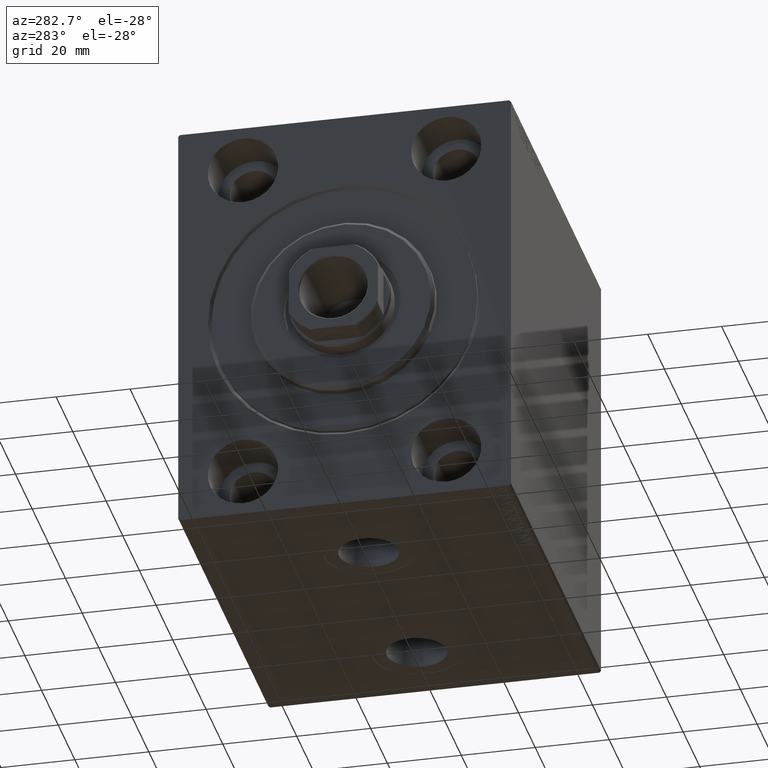
[diagram: clean part render]
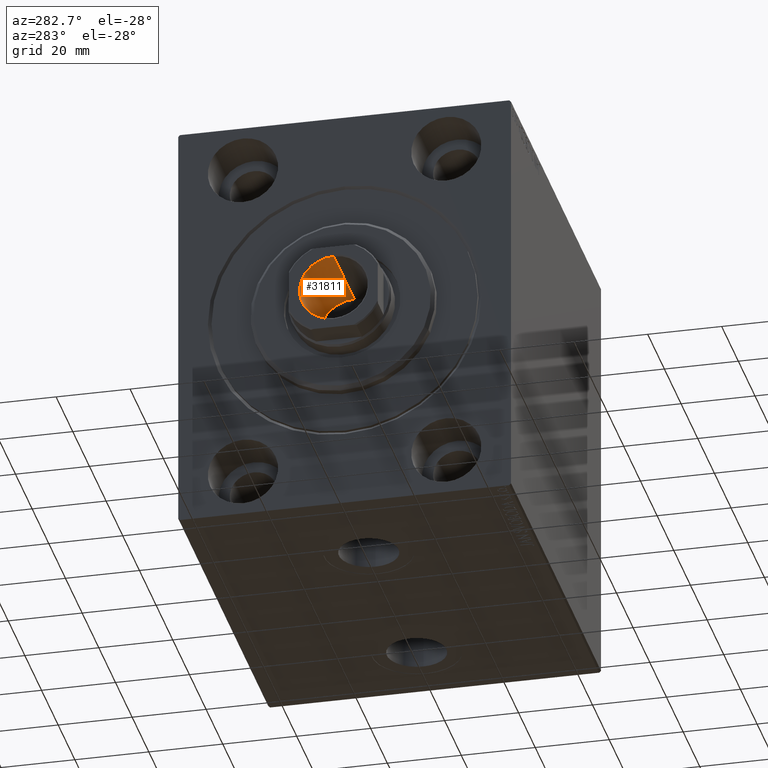
[diagram: same view with one face highlighted and labeled with its STEP entity id]
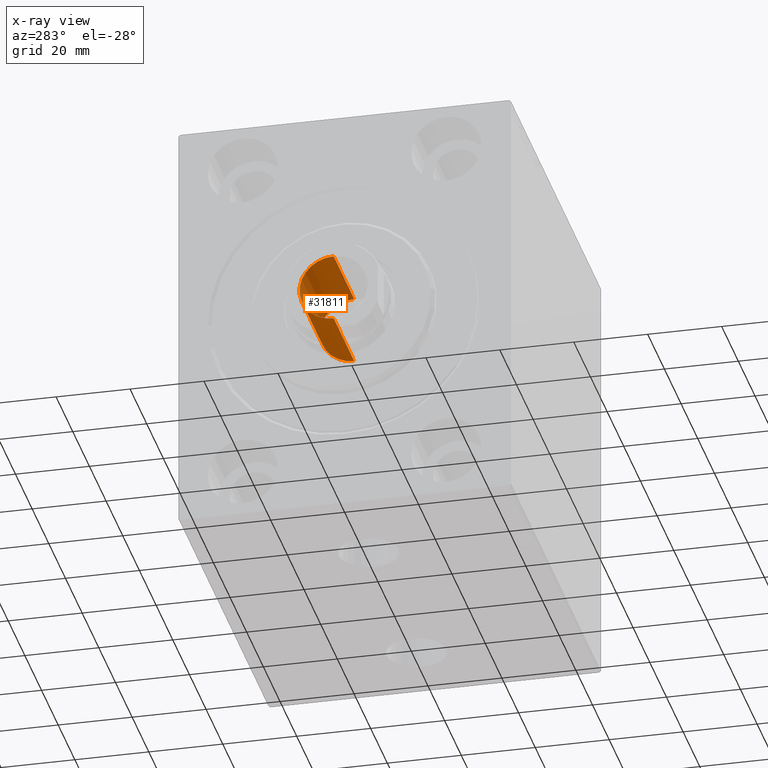
[diagram: x-ray of the same camera — body ghosted, the highlighted face saturated]
A machine part, auxiliary view. The second image highlights one B-rep face of the part: STEP entity #31811.
The next image is the same camera in x-ray: the body ghosted, the highlighted face saturated — about 0% of this face is hidden behind the body in this view.
In plain terms, the highlighted cylindrical surface (edge-blend (fillet) strip) has radius 9.25 mm, axis along (-1, 0, 0).
Its self-contained STEP definition (entity closure, byte-faithful):
#1811 = DIRECTION ( 'NONE',  ( -0.000000000000000000, -0.000000000000000000, 1.000000000000000000 ) ) ;
#1982 = EDGE_CURVE ( 'NONE', #8084, #14806, #22902, .T. ) ;
#3046 = DIRECTION ( 'NONE',  ( -0.000000000000000000, -0.000000000000000000, 1.000000000000000000 ) ) ;
#3928 = DIRECTION ( 'NONE',  ( 1.000000000000000000, 0.000000000000000000, 0.000000000000000000 ) ) ;
#4119 = DIRECTION ( 'NONE',  ( 0.000000000000000000, 0.000000000000000000, 1.000000000000000000 ) ) ;
#4930 = ORIENTED_EDGE ( 'NONE', *, *, #37722, .F. ) ;
#5019 = LINE ( 'NONE', #33220, #37541 ) ;
#5835 = CARTESIAN_POINT ( 'NONE',  ( 0.000000000000000000, 0.000000000000000000, 79.00000000000001421 ) ) ;
#6155 = EDGE_CURVE ( 'NONE', #14806, #27073, #31572, .T. ) ;
#8084 = VERTEX_POINT ( 'NONE', #21124 ) ;
#9882 = EDGE_LOOP ( 'NONE', ( #21738, #4930, #42056, #10272 ) ) ;
#10117 = EDGE_CURVE ( 'NONE', #31732, #27073, #5019, .T. ) ;
#10272 = ORIENTED_EDGE ( 'NONE', *, *, #6155, .T. ) ;
#10364 = AXIS2_PLACEMENT_3D ( 'NONE', #32775, #4119, #18575 ) ;
#10801 = DIRECTION ( 'NONE',  ( -0.000000000000000000, -0.000000000000000000, 1.000000000000000000 ) ) ;
#13844 = CARTESIAN_POINT ( 'NONE',  ( -9.249999999999994671, 1.132798289211300909E-15, 103.6999999999999886 ) ) ;
#14806 = VERTEX_POINT ( 'NONE', #36144 ) ;
#16238 = DIRECTION ( 'NONE',  ( -0.000000000000000000, -0.000000000000000000, 1.000000000000000000 ) ) ;
#18140 = FACE_OUTER_BOUND ( 'NONE', #9882, .T. ) ;
#18464 = CARTESIAN_POINT ( 'NONE',  ( -9.249999999999994671, 1.132798289211300909E-15, 79.00000000000001421 ) ) ;
#18575 = DIRECTION ( 'NONE',  ( 1.000000000000000000, 0.000000000000000000, 0.000000000000000000 ) ) ;
#21124 = CARTESIAN_POINT ( 'NONE',  ( 9.249999999999994671, 0.000000000000000000, 79.00000000000001421 ) ) ;
#21738 = ORIENTED_EDGE ( 'NONE', *, *, #10117, .F. ) ;
#22708 = CIRCLE ( 'NONE', #32208, 9.249999999999994671 ) ;
#22902 = LINE ( 'NONE', #26337, #24189 ) ;
#24189 = VECTOR ( 'NONE', #16238, 1000.000000000000000 ) ;
#26337 = CARTESIAN_POINT ( 'NONE',  ( 9.249999999999994671, 0.000000000000000000, 104.0000000000000142 ) ) ;
#27073 = VERTEX_POINT ( 'NONE', #13844 ) ;
#27361 = DIRECTION ( 'NONE',  ( 1.000000000000000000, 0.000000000000000000, 0.000000000000000000 ) ) ;
#31572 = CIRCLE ( 'NONE', #10364, 9.249999999999994671 ) ;
#31732 = VERTEX_POINT ( 'NONE', #18464 ) ;
#31811 = ADVANCED_FACE ( 'NONE', ( #18140 ), #41971, .F. ) ;
#32142 = AXIS2_PLACEMENT_3D ( 'NONE', #35102, #10801, #3928 ) ;
#32208 = AXIS2_PLACEMENT_3D ( 'NONE', #5835, #3046, #27361 ) ;
#32775 = CARTESIAN_POINT ( 'NONE',  ( 0.000000000000000000, 0.000000000000000000, 103.6999999999999886 ) ) ;
#33220 = CARTESIAN_POINT ( 'NONE',  ( -9.249999999999994671, 1.132798289211300909E-15, 104.0000000000000142 ) ) ;
#35102 = CARTESIAN_POINT ( 'NONE',  ( 0.000000000000000000, 0.000000000000000000, 104.0000000000000142 ) ) ;
#36144 = CARTESIAN_POINT ( 'NONE',  ( 9.249999999999994671, 0.000000000000000000, 103.6999999999999886 ) ) ;
#37541 = VECTOR ( 'NONE', #1811, 1000.000000000000000 ) ;
#37722 = EDGE_CURVE ( 'NONE', #8084, #31732, #22708, .T. ) ;
#41971 = CYLINDRICAL_SURFACE ( 'NONE', #32142, 9.249999999999994671 ) ;
#42056 = ORIENTED_EDGE ( 'NONE', *, *, #1982, .T. ) ;